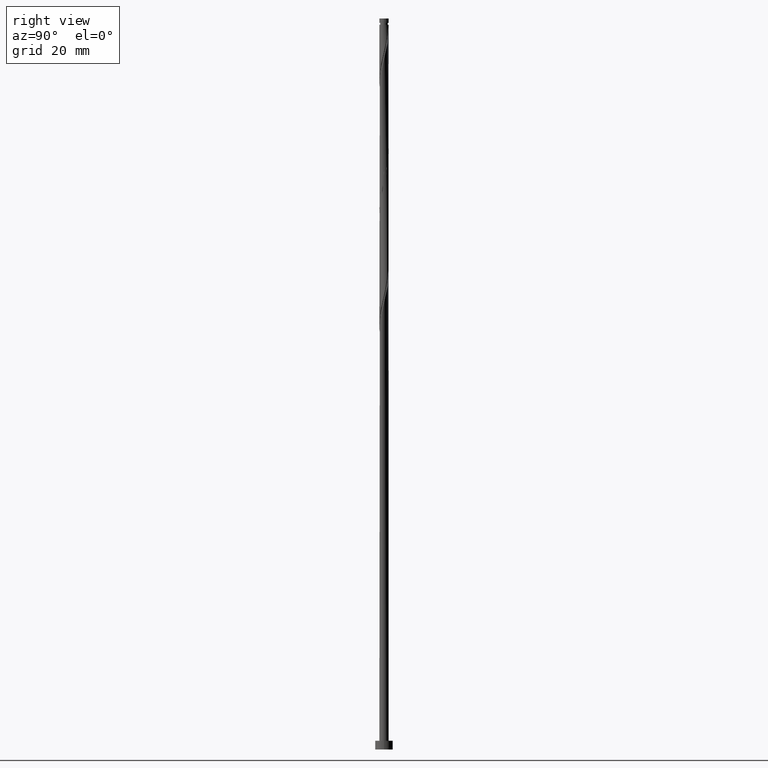
[diagram: clean part render]
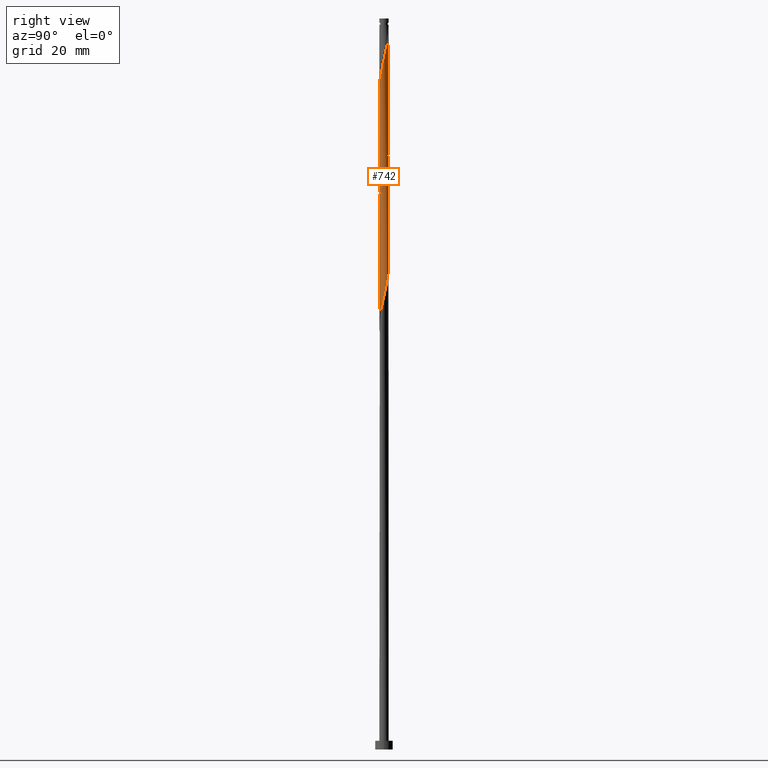
[diagram: same view with one face highlighted and labeled with its STEP entity id]
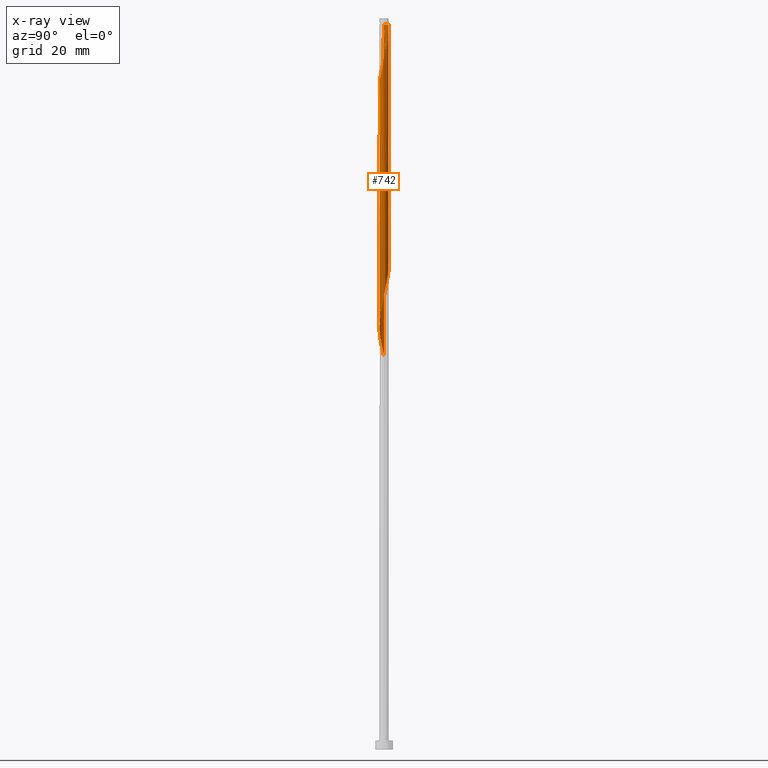
[diagram: x-ray of the same camera — body ghosted, the highlighted face saturated]
A machine part, right view. The second image highlights one B-rep face of the part: STEP entity #742.
The next image is the same camera in x-ray: the body ghosted, the highlighted face saturated — about 0% of this face is hidden behind the body in this view.
In plain terms, the highlighted cylindrical surface (bore or boss wall) has radius 1.6 mm, axis along (-0, -0, -1).
Its self-contained STEP definition (entity closure, byte-faithful):
#5 = CARTESIAN_POINT ( 'NONE',  ( 0.8599962163594105924, 1.363139519914283282, 162.1119337563450244 ) ) ;
#15 = CARTESIAN_POINT ( 'NONE',  ( 0.000000000000000000, 0.000000000000000000, 247.8491132435244992 ) ) ;
#21 = CARTESIAN_POINT ( 'NONE',  ( 1.010611572687927451, 1.240429058491147707, 202.9773183717296376 ) ) ;
#24 = CARTESIAN_POINT ( 'NONE',  ( -0.9695987310071170207, 1.287486366426469520, 170.1247542691655212 ) ) ;
#34 = CARTESIAN_POINT ( 'NONE',  ( -0.8014535150113182294, 1.384800441679596039, 169.3234722178834772 ) ) ;
#52 = CARTESIAN_POINT ( 'NONE',  ( -0.4467602948413325059, -1.536361037957319819, 223.8106517050628952 ) ) ;
#58 = CARTESIAN_POINT ( 'NONE',  ( -1.249539609100570825, -1.018034188126040407, 219.8042414486527036 ) ) ;
#64 = CARTESIAN_POINT ( 'NONE',  ( -1.579010239008790339, -0.2583150500946549410, 135.6696260640373453 ) ) ;
#73 = CARTESIAN_POINT ( 'NONE',  ( -1.547645113330139210, -0.4500416048433579785, 136.4709081153193608 ) ) ;
#83 = CARTESIAN_POINT ( 'NONE',  ( -0.8599962163594103703, -1.363139519914283282, 141.2786004230116532 ) ) ;
#91 = CARTESIAN_POINT ( 'NONE',  ( 1.600000000000000089, 1.959434878635765230E-16, 247.8491132435245845 ) ) ;
#100 = CARTESIAN_POINT ( 'NONE',  ( 1.579516453325393144, 0.3207344954616277999, 237.4324465768578989 ) ) ;
#132 = CARTESIAN_POINT ( 'NONE',  ( -0.4467602948413312292, 1.536361037957318043, 209.3875747819860749 ) ) ;
#136 = CARTESIAN_POINT ( 'NONE',  ( 1.278099141231815450, 0.9625292645849765627, 159.7080876024988640 ) ) ;
#145 = DIRECTION ( 'NONE',  ( -0.000000000000000000, -0.000000000000000000, -1.000000000000000000 ) ) ;
#151 = CARTESIAN_POINT ( 'NONE',  ( -1.249539609100568827, 1.018034188126038853, 213.3939850383962664 ) ) ;
#156 = CARTESIAN_POINT ( 'NONE',  ( -1.471308233388663345, -0.6286907684726501522, 178.9388568332681189 ) ) ;
#163 = CARTESIAN_POINT ( 'NONE',  ( 1.394971353447187701, 0.8073399321019411046, 200.5734722178834772 ) ) ;
#167 = CARTESIAN_POINT ( 'NONE',  ( -1.161226929016443421, -1.117718597068012132, 181.3427029871142224 ) ) ;
#189 = ORIENTED_EDGE ( 'NONE', *, *, #260, .F. ) ;
#201 = CARTESIAN_POINT ( 'NONE',  ( -1.547645113330139210, -0.4500416048433579785, 178.1375747819860749 ) ) ;
#208 = CARTESIAN_POINT ( 'NONE',  ( -1.010611572687926785, -1.240429058491147929, 140.4773183717296376 ) ) ;
#216 = CARTESIAN_POINT ( 'NONE',  ( 0.6333082990155189940, -1.482114516932721449, 147.6888568332681189 ) ) ;
#218 = CARTESIAN_POINT ( 'NONE',  ( -0.9695987310071195742, -1.287486366426471518, 221.4068055512168200 ) ) ;
#225 = CARTESIAN_POINT ( 'NONE',  ( 1.471308233388665343, -0.6286907684726514844, 233.4260363204475084 ) ) ;
#230 = CARTESIAN_POINT ( 'NONE',  ( 1.109569170053842813, -1.152760277276254630, 150.0927029871143077 ) ) ;
#238 = CARTESIAN_POINT ( 'NONE',  ( -0.6843909329630173399, -1.446239624293986781, 142.0798824742937256 ) ) ;
#240 = AXIS2_PLACEMENT_3D ( 'NONE', #453, #833, #951 ) ;
#241 = CARTESIAN_POINT ( 'NONE',  ( 1.394971353447188811, -0.8073399321019441022, 232.6247542691656349 ) ) ;
#260 = EDGE_CURVE ( 'NONE', #511, #1087, #971, .T. ) ;
#262 = ORIENTED_EDGE ( 'NONE', *, *, #1021, .T. ) ;
#264 = DIRECTION ( 'NONE',  ( -0.000000000000000000, -0.000000000000000000, -1.000000000000000000 ) ) ;
#272 = CARTESIAN_POINT ( 'NONE',  ( -0.2602122906671429092, 1.590607558981914416, 166.9196260640373453 ) ) ;
#282 = CARTESIAN_POINT ( 'NONE',  ( 1.353200698052670070, -0.8537258756707367668, 193.3619337563450244 ) ) ;
#286 = CARTESIAN_POINT ( 'NONE',  ( -1.600000000000000089, 0.000000000000000000, 250.0000000000000000 ) ) ;
#288 = CARTESIAN_POINT ( 'NONE',  ( -1.600000000000000311, -2.108787333193360796E-15, 134.5937017860830451 ) ) ;
#291 = CARTESIAN_POINT ( 'NONE',  ( -1.579010239008790339, -0.2583150500946549410, 177.3362927307040593 ) ) ;
#300 = CARTESIAN_POINT ( 'NONE',  ( -0.8599962163594103703, -1.363139519914283282, 182.9452670896783104 ) ) ;
#301 = CYLINDRICAL_SURFACE ( 'NONE', #240, 1.600000000000000089 ) ;
#331 = DIRECTION ( 'NONE',  ( -1.000000000000000000, 0.000000000000000000, 0.000000000000000000 ) ) ;
#342 = CARTESIAN_POINT ( 'NONE',  ( -1.594945909006417306, -0.1270730000578373931, 215.7978311922423700 ) ) ;
#345 = EDGE_LOOP ( 'NONE', ( #714, #262, #189, #531, #1602, #1153, #1669, #541 ) ) ;
#355 = VERTEX_POINT ( 'NONE', #1309 ) ;
#358 = CARTESIAN_POINT ( 'NONE',  ( -1.353200698052672291, -0.8537258756707369889, 219.0029593973706312 ) ) ;
#365 = CARTESIAN_POINT ( 'NONE',  ( -1.394971353447187479, -0.8073399321019416597, 138.0734722178834488 ) ) ;
#372 = CARTESIAN_POINT ( 'NONE',  ( -1.600000000000000311, -2.108787333193360796E-15, 134.5937017860830451 ) ) ;
#382 = CARTESIAN_POINT ( 'NONE',  ( 0.4467602948413332276, 1.536361037957319819, 244.6439850383962664 ) ) ;
#398 = LINE ( 'NONE', #1428, #1596 ) ;
#400 = CARTESIAN_POINT ( 'NONE',  ( -0.1280063101816145688, 1.606660271326313172, 247.0478311922424837 ) ) ;
#404 = CARTESIAN_POINT ( 'NONE',  ( 1.109569170053842813, -1.152760277276254630, 191.7593696537809080 ) ) ;
#409 = CARTESIAN_POINT ( 'NONE',  ( -0.2602122906671429092, 1.590607558981914416, 208.5862927307040309 ) ) ;
#413 = CARTESIAN_POINT ( 'NONE',  ( 1.594945909006415530, -0.1270730000578389474, 154.9003952948065717 ) ) ;
#424 = CARTESIAN_POINT ( 'NONE',  ( 1.594945909006415530, -0.1270730000578389474, 196.5670619614733141 ) ) ;
#433 = CARTESIAN_POINT ( 'NONE',  ( 1.161226929016443421, 1.117718597068011910, 160.5093696537809649 ) ) ;
#442 = CARTESIAN_POINT ( 'NONE',  ( -1.456861787004772646, 0.6894175632154339040, 214.9965491409603828 ) ) ;
#445 = CARTESIAN_POINT ( 'NONE',  ( -0.06610299024276375390, 1.598633915154112239, 166.1183440127553013 ) ) ;
#450 = CARTESIAN_POINT ( 'NONE',  ( 1.599999999999999423, 0.1300103016592774607, 197.6334025234314140 ) ) ;
#453 = CARTESIAN_POINT ( 'NONE',  ( 0.000000000000000000, 0.000000000000000000, 250.0000000000000000 ) ) ;
#483 = CARTESIAN_POINT ( 'NONE',  ( -0.1280063101816158178, -1.606660271326310063, 144.4837286281399145 ) ) ;
#498 = CARTESIAN_POINT ( 'NONE',  ( 0.9695987310071164655, -1.287486366426469964, 149.2914209358322069 ) ) ;
#507 = CARTESIAN_POINT ( 'NONE',  ( 1.249539609100571269, 1.018034188126039741, 240.6375747819860749 ) ) ;
#508 = VERTEX_POINT ( 'NONE', #288 ) ;
#511 = VERTEX_POINT ( 'NONE', #666 ) ;
#517 = CARTESIAN_POINT ( 'NONE',  ( 0.2602122906671444080, 1.590607558981916636, 245.4452670896783673 ) ) ;
#526 = CARTESIAN_POINT ( 'NONE',  ( 0.1280063101816154569, 1.606660271326310063, 165.3170619614732288 ) ) ;
#531 = ORIENTED_EDGE ( 'NONE', *, *, #1150, .T. ) ;
#535 = CARTESIAN_POINT ( 'NONE',  ( -1.278099141231815450, -0.9625292645849765627, 180.5414209358322353 ) ) ;
#541 = ORIENTED_EDGE ( 'NONE', *, *, #702, .F. ) ;
#553 = CARTESIAN_POINT ( 'NONE',  ( -0.4467602948413312292, 1.536361037957318043, 167.7209081153194461 ) ) ;
#554 = CARTESIAN_POINT ( 'NONE',  ( -1.600000000000000311, 8.674444349306020727E-16, 217.9270351194164164 ) ) ;
#562 = CARTESIAN_POINT ( 'NONE',  ( -0.3183959798741202163, -1.567999999999999838, 185.3491132435245277 ) ) ;
#570 = CARTESIAN_POINT ( 'NONE',  ( -0.6333082990155194381, 1.482114516932721004, 210.1888568332680052 ) ) ;
#590 = CARTESIAN_POINT ( 'NONE',  ( -0.06610299024276471147, -1.598633915154114016, 225.4132158076270116 ) ) ;
#605 = CARTESIAN_POINT ( 'NONE',  ( -1.161226929016443421, -1.117718597068012132, 139.6760363204475652 ) ) ;
#607 = CARTESIAN_POINT ( 'NONE',  ( -1.600000000000002309, -2.467729857992213798E-16, 215.2711913676326390 ) ) ;
#612 = CARTESIAN_POINT ( 'NONE',  ( -0.3183959798741202163, -1.567999999999999838, 143.6824465768578989 ) ) ;
#619 = CARTESIAN_POINT ( 'NONE',  ( -0.5087856495666251977, -1.529339728673689169, 142.8811645255757128 ) ) ;
#621 = CARTESIAN_POINT ( 'NONE',  ( -0.3183959798741768377, 1.568000000000437044, 247.8491132435245845 ) ) ;
#626 = LINE ( 'NONE', #1113, #1313 ) ;
#658 = CARTESIAN_POINT ( 'NONE',  ( 0.6843909329630185612, 1.446239624293986559, 204.5798824742937541 ) ) ;
#661 = CARTESIAN_POINT ( 'NONE',  ( -1.353200698052670070, 0.8537258756707366558, 172.5286004230117101 ) ) ;
#664 = CARTESIAN_POINT ( 'NONE',  ( 1.600000000000000311, 1.443248068462123046E-15, 197.0937017860831304 ) ) ;
#666 = CARTESIAN_POINT ( 'NONE',  ( -1.600000000000002309, -2.467729857992213798E-16, 215.2711913676326390 ) ) ;
#670 = CARTESIAN_POINT ( 'NONE',  ( 1.249539609100567938, -1.018034188126039519, 192.5606517050629805 ) ) ;
#674 = CARTESIAN_POINT ( 'NONE',  ( 0.3183959798741203828, 1.567999999999999838, 206.1824465768578705 ) ) ;
#678 = CARTESIAN_POINT ( 'NONE',  ( -1.518189120165081230, 0.5050760293385311295, 174.1311645255757981 ) ) ;
#687 = CARTESIAN_POINT ( 'NONE',  ( 1.471308233388663123, 0.6286907684726498191, 158.1055234999346908 ) ) ;
#702 = EDGE_CURVE ( 'NONE', #947, #1432, #885, .T. ) ;
#714 = ORIENTED_EDGE ( 'NONE', *, *, #1556, .F. ) ;
#716 = CARTESIAN_POINT ( 'NONE',  ( -0.5087856495666251977, -1.529339728673689169, 184.5478311922424268 ) ) ;
#733 = CARTESIAN_POINT ( 'NONE',  ( -0.6333082990155211034, -1.482114516932723891, 223.0093696537810217 ) ) ;
#742 = ADVANCED_FACE ( 'NONE', ( #928 ), #301, .T. ) ;
#746 = CARTESIAN_POINT ( 'NONE',  ( 0.8599962163594108144, -1.363139519914286391, 229.4196260640373737 ) ) ;
#753 = CARTESIAN_POINT ( 'NONE',  ( 1.594945909006417528, 0.1270730000578368657, 236.6311645255757412 ) ) ;
#761 = CARTESIAN_POINT ( 'NONE',  ( 1.547645113330142097, -0.4500416048433600325, 234.2273183717296661 ) ) ;
#777 = VECTOR ( 'NONE', #264, 1000.000000000000000 ) ;
#786 = CARTESIAN_POINT ( 'NONE',  ( 0.3183959798741203828, 1.567999999999999838, 164.5157799101912133 ) ) ;
#797 = CARTESIAN_POINT ( 'NONE',  ( 1.600000000000000311, 1.443248068462123046E-15, 197.0937017860831304 ) ) ;
#805 = CARTESIAN_POINT ( 'NONE',  ( -1.610375364687440580, -0.06658849534595226438, 176.5350106794219585 ) ) ;
#815 = CARTESIAN_POINT ( 'NONE',  ( 1.518189120165081007, -0.5050760293385316846, 194.9644978589091124 ) ) ;
#821 = CARTESIAN_POINT ( 'NONE',  ( -1.353200698052670070, 0.8537258756707366558, 214.1952670896783673 ) ) ;
#833 = DIRECTION ( 'NONE',  ( -0.000000000000000000, -0.000000000000000000, -1.000000000000000000 ) ) ;
#845 = CARTESIAN_POINT ( 'NONE',  ( 0.06610299024276325430, -1.598633915154112239, 186.9516773460885872 ) ) ;
#848 = CARTESIAN_POINT ( 'NONE',  ( 0.6843909329630173399, -1.446239624293988557, 228.6183440127552444 ) ) ;
#855 = CARTESIAN_POINT ( 'NONE',  ( 0.1280063101816147353, -1.606660271326313172, 226.2144978589091124 ) ) ;
#862 = CARTESIAN_POINT ( 'NONE',  ( -1.109569170053844367, -1.152760277276255296, 220.6055234999346908 ) ) ;
#869 = CARTESIAN_POINT ( 'NONE',  ( -0.8014535150113197837, -1.384800441679596705, 222.2080876024988356 ) ) ;
#877 = CARTESIAN_POINT ( 'NONE',  ( 0.06610299024276559965, 1.598633915154114238, 246.2465491409603828 ) ) ;
#884 = CARTESIAN_POINT ( 'NONE',  ( 1.010611572687927673, -1.240429058491149705, 230.2209081153193040 ) ) ;
#885 =( BOUNDED_CURVE ( )  B_SPLINE_CURVE ( 2, ( #1089, #1590, #1612, #1211, #1337, #442, #821, #151, #1182, #1356, #1071, #570, #132, #409, #1488, #921, #674, #1201, #658, #1063, #21, #1348, #1458, #163, #1080, #1632, #1221, #450, #1448 ),
 .UNSPECIFIED., .F., .T. ) 
 B_SPLINE_CURVE_WITH_KNOTS ( ( 3, 2, 2, 2, 2, 2, 2, 2, 2, 2, 2, 2, 2, 2, 3 ),
 ( 0.4295271625973832164, 0.4326923076923077094, 0.4423076923076922906, 0.4519230769230769273, 0.4615384615384615641, 0.4711538461538461453, 0.4807692307692307820, 0.4903846153846153633, 0.5000000000000000000, 0.5096153846153845812, 0.5192307692307692735, 0.5288461538461538547, 0.5384615384615384359, 0.5480769230769231282, 0.5545271625973829943 ),
 .UNSPECIFIED. ) 
 CURVE ( )  GEOMETRIC_REPRESENTATION_ITEM ( )  RATIONAL_B_SPLINE_CURVE ( ( 0.9061636035683098278, 0.9069090390690984771, 0.9090909090909551349, 0.9024626128164584538, 0.9090909090909551349, 0.9024626128164584538, 0.9090909090909551349, 0.9024626128164584538, 0.9090909090909551349, 0.9024626128164584538, 0.9090909090909551349, 0.9024626128164584538, 0.9090909090909551349, 0.9024626128164584538, 0.9090909090909551349, 0.9024626128164584538, 0.9090909090909551349, 0.9024626128164584538, 0.9090909090909551349, 0.9024626128164584538, 0.9090909090909551349, 0.9024626128164584538, 0.9090909090909551349, 0.9024626128164584538, 0.9090909090909551349, 0.9024626128164584538, 0.9090909090909551349, 0.9046444828383152226, 0.9061636035683098278 ) ) 
 REPRESENTATION_ITEM ( '' )  );
#911 = CARTESIAN_POINT ( 'NONE',  ( 1.161226929016444753, -1.117718597068014574, 231.0221901666015185 ) ) ;
#914 = CARTESIAN_POINT ( 'NONE',  ( -0.6843909329630173399, -1.446239624293986781, 183.7465491409604397 ) ) ;
#921 = CARTESIAN_POINT ( 'NONE',  ( 0.1280063101816154569, 1.606660271326310063, 206.9837286281399429 ) ) ;
#926 = CARTESIAN_POINT ( 'NONE',  ( 1.579516453325390479, -0.3207344954616280774, 154.0991132435244992 ) ) ;
#928 = FACE_OUTER_BOUND ( 'NONE', #345, .T. ) ;
#937 = CARTESIAN_POINT ( 'NONE',  ( 0.8014535150113178963, -1.384800441679596261, 190.1568055512168485 ) ) ;
#947 = VERTEX_POINT ( 'NONE', #554 ) ;
#950 = CARTESIAN_POINT ( 'NONE',  ( 1.394971353447187701, 0.8073399321019411046, 158.9068055512167916 ) ) ;
#951 = DIRECTION ( 'NONE',  ( -1.000000000000000000, 0.000000000000000000, 0.000000000000000000 ) ) ;
#958 = CARTESIAN_POINT ( 'NONE',  ( 0.6843909329630185612, 1.446239624293986559, 162.9132158076270684 ) ) ;
#971 =( BOUNDED_CURVE ( )  B_SPLINE_CURVE ( 2, ( #607, #1244, #342, #1099, #1126, #1528, #358, #58, #862, #218, #869, #733, #52, #1664, #590, #855, #1108, #1648, #848, #746, #884, #911, #1422, #241, #225, #761, #1712, #1149, #753, #100, #1300, #1291, #1699, #507, #1028, #1283, #1559, #1551, #382, #517, #877, #400, #621 ),
 .UNSPECIFIED., .F., .T. ) 
 B_SPLINE_CURVE_WITH_KNOTS ( ( 3, 2, 2, 2, 2, 2, 2, 2, 2, 2, 2, 2, 2, 2, 2, 2, 2, 2, 2, 2, 2, 3 ),
 ( 0.5545271625973835494, 0.5576923076923077094, 0.5673076923076922906, 0.5769230769230768718, 0.5865384615384615641, 0.5961538461538461453, 0.6057692307692308376, 0.6153846153846154188, 0.6250000000000000000, 0.6346153846153845812, 0.6442307692307691624, 0.6538461538461538547, 0.6634615384615384359, 0.6730769230769231282, 0.6826923076923077094, 0.6923076923076922906, 0.7019230769230768718, 0.7115384615384615641, 0.7211538461538461453, 0.7307692307692308376, 0.7403846153846154188, 0.7500000000000000000 ),
 .UNSPECIFIED. ) 
 CURVE ( )  GEOMETRIC_REPRESENTATION_ITEM ( )  RATIONAL_B_SPLINE_CURVE ( ( 0.9061636035683159340, 0.9069090390691046943, 0.9090909090909612411, 0.9024626128164643379, 0.9090909090909612411, 0.9024626128164643379, 0.9090909090909612411, 0.9024626128164643379, 0.9090909090909612411, 0.9024626128164643379, 0.9090909090909612411, 0.9024626128164643379, 0.9090909090909612411, 0.9024626128164643379, 0.9090909090909612411, 0.9024626128164643379, 0.9090909090909612411, 0.9024626128164643379, 0.9090909090909612411, 0.9024626128164643379, 0.9090909090909612411, 0.9024626128164643379, 0.9090909090909612411, 0.9024626128164643379, 0.9090909090909612411, 0.9024626128164643379, 0.9090909090909612411, 0.9024626128164643379, 0.9090909090909612411, 0.9024626128164643379, 0.9090909090909612411, 0.9024626128164643379, 0.9090909090909612411, 0.9024626128164643379, 0.9090909090909612411, 0.9024626128164643379, 0.9090909090909612411, 0.9024626128164643379, 0.9090909090909612411, 0.9024626128164643379, 0.9090909090909612411, 0.9024626128164643379, 0.9090909090909612411 ) ) 
 REPRESENTATION_ITEM ( '' )  );
#994 = CARTESIAN_POINT ( 'NONE',  ( 1.518189120165081007, -0.5050760293385316846, 153.2978311922424552 ) ) ;
#1005 = CIRCLE ( 'NONE', #1285, 1.599999999999981881 ) ;
#1014 =( BOUNDED_CURVE ( )  B_SPLINE_CURVE ( 2, ( #797, #1451, #424, #1330, #815, #1216, #282, #670, #404, #1615, #937, #1471, #1185, #1050, #845, #1383, #562, #716, #914, #300, #1351, #167, #535, #1083, #156, #201, #291, #805, #1340, #1584, #678, #1251, #661, #1204, #1481, #24, #34, #1626, #553, #272, #445, #526, #786, #1321, #958, #5, #1074, #433, #136, #950, #687, #1513, #1057, #1594, #413, #926, #994, #1420, #1281, #1533, #230, #498, #1662, #216, #1653, #1690, #1520, #483, #612, #619, #238, #83, #208, #605, #1130, #365, #1124, #73, #64, #1261, #372 ),
 .UNSPECIFIED., .F., .T. ) 
 B_SPLINE_CURVE_WITH_KNOTS ( ( 3, 2, 2, 2, 2, 2, 2, 2, 2, 2, 2, 2, 2, 2, 2, 2, 2, 2, 2, 2, 2, 2, 2, 2, 2, 2, 2, 2, 2, 2, 2, 2, 2, 2, 2, 2, 2, 2, 2, 2, 3 ),
 ( 0.5545271625973829943, 0.5576923076923077094, 0.5673076923076922906, 0.5769230769230768718, 0.5865384615384615641, 0.5961538461538461453, 0.6057692307692307265, 0.6153846153846154188, 0.6250000000000000000, 0.6346153846153845812, 0.6442307692307692735, 0.6538461538461538547, 0.6634615384615384359, 0.6730769230769231282, 0.6826923076923077094, 0.6923076923076922906, 0.7019230769230768718, 0.7115384615384615641, 0.7211538461538461453, 0.7307692307692307265, 0.7403846153846154188, 0.7500000000000000000, 0.7596153846153845812, 0.7692307692307692735, 0.7788461538461538547, 0.7884615384615384359, 0.7980769230769231282, 0.8076923076923077094, 0.8173076923076922906, 0.8269230769230768718, 0.8365384615384615641, 0.8461538461538461453, 0.8557692307692307265, 0.8653846153846154188, 0.8750000000000000000, 0.8846153846153845812, 0.8942307692307692735, 0.9038461538461538547, 0.9134615384615384359, 0.9230769230769231282, 0.9295271625973832164 ),
 .UNSPECIFIED. ) 
 CURVE ( )  GEOMETRIC_REPRESENTATION_ITEM ( )  RATIONAL_B_SPLINE_CURVE ( ( 0.9061636035683098278, 0.9069090390690983661, 0.9090909090909551349, 0.9024626128164584538, 0.9090909090909551349, 0.9024626128164584538, 0.9090909090909551349, 0.9024626128164584538, 0.9090909090909551349, 0.9024626128164584538, 0.9090909090909551349, 0.9024626128164584538, 0.9090909090909551349, 0.9024626128164584538, 0.9090909090909551349, 0.9024626128164584538, 0.9090909090909551349, 0.9024626128164584538, 0.9090909090909551349, 0.9024626128164584538, 0.9090909090909551349, 0.9024626128164584538, 0.9090909090909551349, 0.9024626128164584538, 0.9090909090909551349, 0.9024626128164584538, 0.9090909090909551349, 0.9024626128164584538, 0.9090909090909551349, 0.9024626128164584538, 0.9090909090909551349, 0.9024626128164584538, 0.9090909090909551349, 0.9024626128164584538, 0.9090909090909551349, 0.9024626128164584538, 0.9090909090909551349, 0.9024626128164584538, 0.9090909090909551349, 0.9024626128164584538, 0.9090909090909551349, 0.9024626128164584538, 0.9090909090909551349, 0.9024626128164584538, 0.9090909090909551349, 0.9024626128164584538, 0.9090909090909551349, 0.9024626128164584538, 0.9090909090909551349, 0.9024626128164584538, 0.9090909090909551349, 0.9024626128164584538, 0.9090909090909551349, 0.9024626128164584538, 0.9090909090909551349, 0.9024626128164584538, 0.9090909090909551349, 0.9024626128164584538, 0.9090909090909551349, 0.9024626128164584538, 0.9090909090909551349, 0.9024626128164584538, 0.9090909090909551349, 0.9024626128164584538, 0.9090909090909551349, 0.9024626128164584538, 0.9090909090909551349, 0.9024626128164584538, 0.9090909090909551349, 0.9024626128164584538, 0.9090909090909551349, 0.9024626128164584538, 0.9090909090909551349, 0.9024626128164584538, 0.9090909090909551349, 0.9024626128164584538, 0.9090909090909551349, 0.9024626128164584538, 0.9090909090909551349, 0.9046444828383151116, 0.9061636035683098278 ) ) 
 REPRESENTATION_ITEM ( '' )  );
#1021 = EDGE_CURVE ( 'NONE', #355, #1087, #1005, .T. ) ;
#1028 = CARTESIAN_POINT ( 'NONE',  ( 1.109569170053844811, 1.152760277276255296, 241.4388568332680052 ) ) ;
#1050 = CARTESIAN_POINT ( 'NONE',  ( 0.2602122906671423541, -1.590607558981914416, 187.7529593973706312 ) ) ;
#1057 = CARTESIAN_POINT ( 'NONE',  ( 1.579010239008790339, 0.2583150500946551076, 156.5029593973706596 ) ) ;
#1063 = CARTESIAN_POINT ( 'NONE',  ( 0.8599962163594105924, 1.363139519914283282, 203.7786004230117101 ) ) ;
#1068 = EDGE_CURVE ( 'NONE', #1432, #508, #1014, .T. ) ;
#1071 = CARTESIAN_POINT ( 'NONE',  ( -0.8014535150113182294, 1.384800441679596039, 210.9901388845501629 ) ) ;
#1074 = CARTESIAN_POINT ( 'NONE',  ( 1.010611572687927451, 1.240429058491147707, 161.3106517050629805 ) ) ;
#1080 = CARTESIAN_POINT ( 'NONE',  ( 1.471308233388663123, 0.6286907684726498191, 199.7721901666014332 ) ) ;
#1083 = CARTESIAN_POINT ( 'NONE',  ( -1.394971353447187479, -0.8073399321019416597, 179.7401388845501344 ) ) ;
#1087 = VERTEX_POINT ( 'NONE', #1549 ) ;
#1089 = CARTESIAN_POINT ( 'NONE',  ( -1.600000000000000311, 8.674444349306020727E-16, 217.9270351194164164 ) ) ;
#1099 = CARTESIAN_POINT ( 'NONE',  ( -1.579516453325393144, -0.3207344954616280219, 216.5991132435245277 ) ) ;
#1108 = CARTESIAN_POINT ( 'NONE',  ( 0.3183959798741198832, -1.568000000000001837, 227.0157799101911564 ) ) ;
#1113 = CARTESIAN_POINT ( 'NONE',  ( -1.600000000000000089, 0.000000000000000000, 250.0000000000000000 ) ) ;
#1124 = CARTESIAN_POINT ( 'NONE',  ( -1.471308233388663345, -0.6286907684726501522, 137.2721901666014332 ) ) ;
#1126 = CARTESIAN_POINT ( 'NONE',  ( -1.518189120165083450, -0.5050760293385309074, 217.4003952948064864 ) ) ;
#1130 = CARTESIAN_POINT ( 'NONE',  ( -1.278099141231815450, -0.9625292645849765627, 138.8747542691654928 ) ) ;
#1149 = CARTESIAN_POINT ( 'NONE',  ( 1.610375364687443245, -0.06658849534595265296, 235.8298824742937256 ) ) ;
#1150 = EDGE_CURVE ( 'NONE', #511, #508, #626, .T. ) ;
#1153 = ORIENTED_EDGE ( 'NONE', *, *, #1336, .F. ) ;
#1182 = CARTESIAN_POINT ( 'NONE',  ( -1.109569170053842813, 1.152760277276254630, 212.5927029871142224 ) ) ;
#1185 = CARTESIAN_POINT ( 'NONE',  ( 0.4467602948413312292, -1.536361037957318043, 188.5542414486527036 ) ) ;
#1201 = CARTESIAN_POINT ( 'NONE',  ( 0.5087856495666254197, 1.529339728673689169, 205.3811645255757696 ) ) ;
#1204 = CARTESIAN_POINT ( 'NONE',  ( -1.249539609100568827, 1.018034188126038853, 171.7273183717296661 ) ) ;
#1211 = CARTESIAN_POINT ( 'NONE',  ( -1.579516453325390479, 0.3207344954616279109, 216.5991132435244992 ) ) ;
#1216 = CARTESIAN_POINT ( 'NONE',  ( 1.456861787004772646, -0.6894175632154335709, 194.1632158076270400 ) ) ;
#1221 = CARTESIAN_POINT ( 'NONE',  ( 1.579010239008790339, 0.2583150500946551076, 198.1696260640373453 ) ) ;
#1244 = CARTESIAN_POINT ( 'NONE',  ( -1.600000000000001865, -0.06363700853883491604, 215.5353622832656129 ) ) ;
#1250 = VERTEX_POINT ( 'NONE', #91 ) ;
#1251 = CARTESIAN_POINT ( 'NONE',  ( -1.456861787004772646, 0.6894175632154339040, 173.3298824742936972 ) ) ;
#1261 = CARTESIAN_POINT ( 'NONE',  ( -1.599999999999999645, -0.1300103016592733529, 135.1334025234313572 ) ) ;
#1267 = DIRECTION ( 'NONE',  ( -0.000000000000000000, -0.000000000000000000, -1.000000000000000000 ) ) ;
#1281 = CARTESIAN_POINT ( 'NONE',  ( 1.353200698052670070, -0.8537258756707367668, 151.6952670896783673 ) ) ;
#1283 = CARTESIAN_POINT ( 'NONE',  ( 0.9695987310071201293, 1.287486366426470852, 242.2401388845501629 ) ) ;
#1285 = AXIS2_PLACEMENT_3D ( 'NONE', #15, #145, #331 ) ;
#1291 = CARTESIAN_POINT ( 'NONE',  ( 1.456861787004775088, 0.6894175632154342370, 239.0350106794219869 ) ) ;
#1300 = CARTESIAN_POINT ( 'NONE',  ( 1.518189120165084116, 0.5050760293385301303, 238.2337286281398576 ) ) ;
#1309 = CARTESIAN_POINT ( 'NONE',  ( -1.599999999999981881, 0.000000000000000000, 247.8491132435244992 ) ) ;
#1313 = VECTOR ( 'NONE', #1267, 1000.000000000000000 ) ;
#1321 = CARTESIAN_POINT ( 'NONE',  ( 0.5087856495666254197, 1.529339728673689169, 163.7144978589091409 ) ) ;
#1330 = CARTESIAN_POINT ( 'NONE',  ( 1.579516453325390479, -0.3207344954616280774, 195.7657799101911280 ) ) ;
#1336 = EDGE_CURVE ( 'NONE', #1250, #1432, #398, .T. ) ;
#1337 = CARTESIAN_POINT ( 'NONE',  ( -1.518189120165081230, 0.5050760293385311295, 215.7978311922424837 ) ) ;
#1340 = CARTESIAN_POINT ( 'NONE',  ( -1.594945909006415530, 0.1270730000578380314, 175.7337286281398860 ) ) ;
#1348 = CARTESIAN_POINT ( 'NONE',  ( 1.161226929016443421, 1.117718597068011910, 202.1760363204475368 ) ) ;
#1351 = CARTESIAN_POINT ( 'NONE',  ( -1.010611572687926785, -1.240429058491147929, 182.1439850383962664 ) ) ;
#1356 = CARTESIAN_POINT ( 'NONE',  ( -0.9695987310071170207, 1.287486366426469520, 211.7914209358322069 ) ) ;
#1383 = CARTESIAN_POINT ( 'NONE',  ( -0.1280063101816158178, -1.606660271326310063, 186.1503952948065432 ) ) ;
#1420 = CARTESIAN_POINT ( 'NONE',  ( 1.456861787004772646, -0.6894175632154335709, 152.4965491409603544 ) ) ;
#1422 = CARTESIAN_POINT ( 'NONE',  ( 1.278099141231816338, -0.9625292645849792272, 231.8234722178834488 ) ) ;
#1428 = CARTESIAN_POINT ( 'NONE',  ( 1.600000000000000089, 1.959434878635765230E-16, 250.0000000000000000 ) ) ;
#1432 = VERTEX_POINT ( 'NONE', #664 ) ;
#1448 = CARTESIAN_POINT ( 'NONE',  ( 1.600000000000000311, 1.443248068462123046E-15, 197.0937017860831304 ) ) ;
#1451 = CARTESIAN_POINT ( 'NONE',  ( 1.600000000000000533, -0.06363700853882514608, 196.8295308704501281 ) ) ;
#1458 = CARTESIAN_POINT ( 'NONE',  ( 1.278099141231815450, 0.9625292645849765627, 201.3747542691655781 ) ) ;
#1465 = LINE ( 'NONE', #286, #777 ) ;
#1471 = CARTESIAN_POINT ( 'NONE',  ( 0.6333082990155189940, -1.482114516932721449, 189.3555234999347476 ) ) ;
#1481 = CARTESIAN_POINT ( 'NONE',  ( -1.109569170053842813, 1.152760277276254630, 170.9260363204475652 ) ) ;
#1488 = CARTESIAN_POINT ( 'NONE',  ( -0.06610299024276375390, 1.598633915154112239, 207.7850106794219869 ) ) ;
#1513 = CARTESIAN_POINT ( 'NONE',  ( 1.547645113330139433, 0.4500416048433572014, 157.3042414486526468 ) ) ;
#1520 = CARTESIAN_POINT ( 'NONE',  ( 0.06610299024276325430, -1.598633915154112239, 145.2850106794219300 ) ) ;
#1528 = CARTESIAN_POINT ( 'NONE',  ( -1.456861787004774644, -0.6894175632154345701, 218.2016773460886156 ) ) ;
#1533 = CARTESIAN_POINT ( 'NONE',  ( 1.249539609100567938, -1.018034188126039519, 150.8939850383962948 ) ) ;
#1549 = CARTESIAN_POINT ( 'NONE',  ( -0.3183959798741768377, 1.568000000000437044, 247.8491132435245845 ) ) ;
#1551 = CARTESIAN_POINT ( 'NONE',  ( 0.6333082990155211034, 1.482114516932723891, 243.8427029871142793 ) ) ;
#1556 = EDGE_CURVE ( 'NONE', #355, #947, #1465, .T. ) ;
#1559 = CARTESIAN_POINT ( 'NONE',  ( 0.8014535150113202278, 1.384800441679596705, 243.0414209358321500 ) ) ;
#1579 = DIRECTION ( 'NONE',  ( -0.000000000000000000, -0.000000000000000000, -1.000000000000000000 ) ) ;
#1584 = CARTESIAN_POINT ( 'NONE',  ( -1.579516453325390479, 0.3207344954616279109, 174.9324465768578705 ) ) ;
#1590 = CARTESIAN_POINT ( 'NONE',  ( -1.600000000000000311, 0.06363700853882917063, 217.6628642037834425 ) ) ;
#1594 = CARTESIAN_POINT ( 'NONE',  ( 1.610375364687440580, 0.06658849534595159825, 155.7016773460885872 ) ) ;
#1596 = VECTOR ( 'NONE', #1579, 1000.000000000000000 ) ;
#1602 = ORIENTED_EDGE ( 'NONE', *, *, #1068, .F. ) ;
#1612 = CARTESIAN_POINT ( 'NONE',  ( -1.594945909006415530, 0.1270730000578380314, 217.4003952948065717 ) ) ;
#1615 = CARTESIAN_POINT ( 'NONE',  ( 0.9695987310071164655, -1.287486366426469964, 190.9580876024988640 ) ) ;
#1626 = CARTESIAN_POINT ( 'NONE',  ( -0.6333082990155194381, 1.482114516932721004, 168.5221901666013764 ) ) ;
#1632 = CARTESIAN_POINT ( 'NONE',  ( 1.547645113330139433, 0.4500416048433572014, 198.9709081153193608 ) ) ;
#1648 = CARTESIAN_POINT ( 'NONE',  ( 0.5087856495666246426, -1.529339728673692056, 227.8170619614732857 ) ) ;
#1653 = CARTESIAN_POINT ( 'NONE',  ( 0.4467602948413312292, -1.536361037957318043, 146.8875747819860749 ) ) ;
#1662 = CARTESIAN_POINT ( 'NONE',  ( 0.8014535150113178963, -1.384800441679596261, 148.4901388845501913 ) ) ;
#1664 = CARTESIAN_POINT ( 'NONE',  ( -0.2602122906671441860, -1.590607558981916636, 224.6119337563450529 ) ) ;
#1669 = ORIENTED_EDGE ( 'NONE', *, *, #1336, .T. ) ;
#1690 = CARTESIAN_POINT ( 'NONE',  ( 0.2602122906671423541, -1.590607558981914416, 146.0862927307039740 ) ) ;
#1699 = CARTESIAN_POINT ( 'NONE',  ( 1.353200698052672291, 0.8537258756707370999, 239.8362927307039456 ) ) ;
#1712 = CARTESIAN_POINT ( 'NONE',  ( 1.579010239008791894, -0.2583150500946562733, 235.0286004230116248 ) ) ;